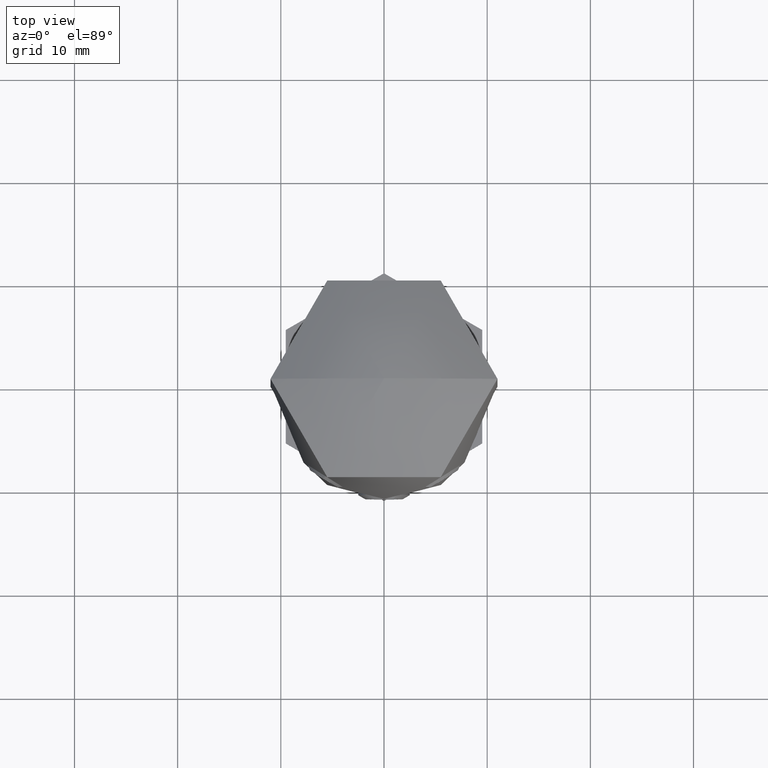
[diagram: clean part render]
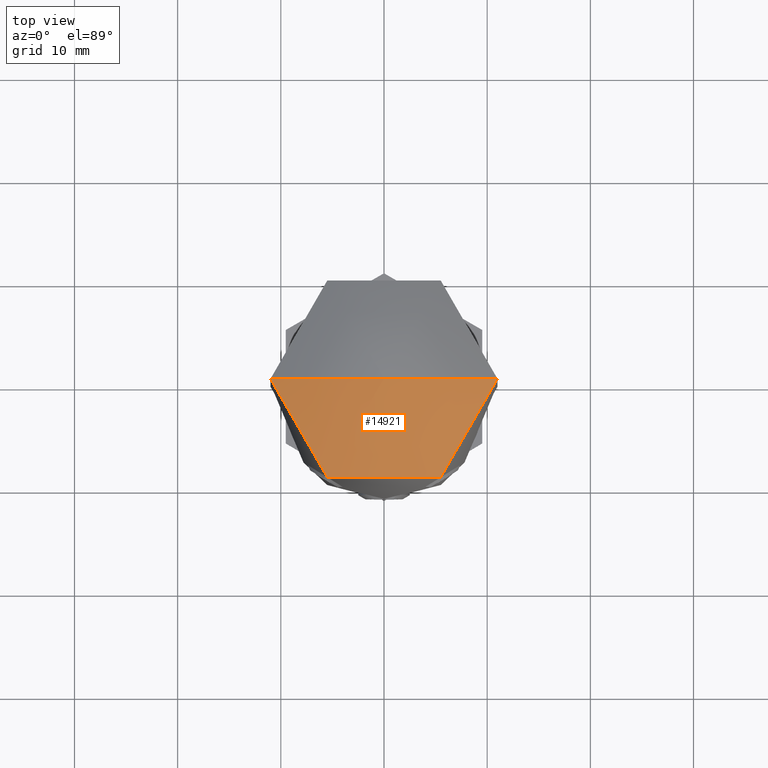
[diagram: same view with one face highlighted and labeled with its STEP entity id]
A machine part, top view. The second image highlights one B-rep face of the part: STEP entity #14921.
In plain terms, the highlighted toroidal blend (fillet) surface has major radius 1.713 mm and minor (blend) radius 28 mm.
Its self-contained STEP definition (entity closure, byte-faithful):
#1231 = DIRECTION ( 'NONE',  ( 0.000000000000000000, 0.000000000000000000, -1.000000000000000000 ) ) ;
#1325 = CARTESIAN_POINT ( 'NONE',  ( 10.99999999999999289, 0.000000000000000000, 44.00000000000000000 ) ) ;
#1706 = DIRECTION ( 'NONE',  ( -0.000000000000000000, -0.000000000000000000, 1.000000000000000000 ) ) ;
#2183 = VERTEX_POINT ( 'NONE', #18327 ) ;
#2737 = AXIS2_PLACEMENT_3D ( 'NONE', #16114, #1706, #14167 ) ;
#3459 = DIRECTION ( 'NONE',  ( 1.224646799147353207E-16, 1.000000000000000000, 0.000000000000000000 ) ) ;
#5267 = DIRECTION ( 'NONE',  ( -1.000000000000000000, 1.224646799147353207E-16, 0.000000000000000000 ) ) ;
#6427 = AXIS2_PLACEMENT_3D ( 'NONE', #9710, #13403, #15283 ) ;
#7390 = EDGE_CURVE ( 'NONE', #15173, #16832, #21503, .T. ) ;
#7982 = CIRCLE ( 'NONE', #12084, 28.00000000000000000 ) ;
#8630 = AXIS2_PLACEMENT_3D ( 'NONE', #21494, #3459, #5267 ) ;
#9624 = TOROIDAL_SURFACE ( 'NONE', #6427, -1.712969088865089695, 28.00000000000000000 ) ;
#9662 = CIRCLE ( 'NONE', #8630, 28.00000000000000000 ) ;
#9710 = CARTESIAN_POINT ( 'NONE',  ( 0.000000000000000000, 0.000000000000000000, 19.05244667416139137 ) ) ;
#9813 = DIRECTION ( 'NONE',  ( 0.000000000000000000, -1.000000000000000000, 0.000000000000000000 ) ) ;
#10464 = ORIENTED_EDGE ( 'NONE', *, *, #15356, .T. ) ;
#12084 = AXIS2_PLACEMENT_3D ( 'NONE', #20523, #9813, #1231 ) ;
#12608 = ORIENTED_EDGE ( 'NONE', *, *, #12709, .F. ) ;
#12709 = EDGE_CURVE ( 'NONE', #15173, #2183, #9662, .T. ) ;
#13403 = DIRECTION ( 'NONE',  ( -0.000000000000000000, -0.000000000000000000, 1.000000000000000000 ) ) ;
#14167 = DIRECTION ( 'NONE',  ( 1.000000000000000000, 0.000000000000000000, 0.000000000000000000 ) ) ;
#14921 = ADVANCED_FACE ( 'NONE', ( #18004 ), #9624, .T. ) ;
#15173 = VERTEX_POINT ( 'NONE', #16406 ) ;
#15283 = DIRECTION ( 'NONE',  ( 1.000000000000000000, 0.000000000000000000, 0.000000000000000000 ) ) ;
#15356 = EDGE_CURVE ( 'NONE', #16832, #2183, #7982, .T. ) ;
#15502 = EDGE_LOOP ( 'NONE', ( #12608, #23029, #10464 ) ) ;
#16114 = CARTESIAN_POINT ( 'NONE',  ( 0.000000000000000000, 0.000000000000000000, 44.00000000000000000 ) ) ;
#16406 = CARTESIAN_POINT ( 'NONE',  ( -10.99999999999999289, 1.347111479062087813E-15, 44.00000000000000000 ) ) ;
#16832 = VERTEX_POINT ( 'NONE', #1325 ) ;
#18004 = FACE_OUTER_BOUND ( 'NONE', #15502, .T. ) ;
#18327 = CARTESIAN_POINT ( 'NONE',  ( 0.000000000000000000, 0.000000000000000000, 47.00000000000000000 ) ) ;
#20523 = CARTESIAN_POINT ( 'NONE',  ( -1.712969088865089695, 0.000000000000000000, 19.05244667416139137 ) ) ;
#21494 = CARTESIAN_POINT ( 'NONE',  ( 1.712969088865089695, -2.097782111716990278E-16, 19.05244667416139137 ) ) ;
#21503 = CIRCLE ( 'NONE', #2737, 10.99999999999999289 ) ;
#23029 = ORIENTED_EDGE ( 'NONE', *, *, #7390, .T. ) ;